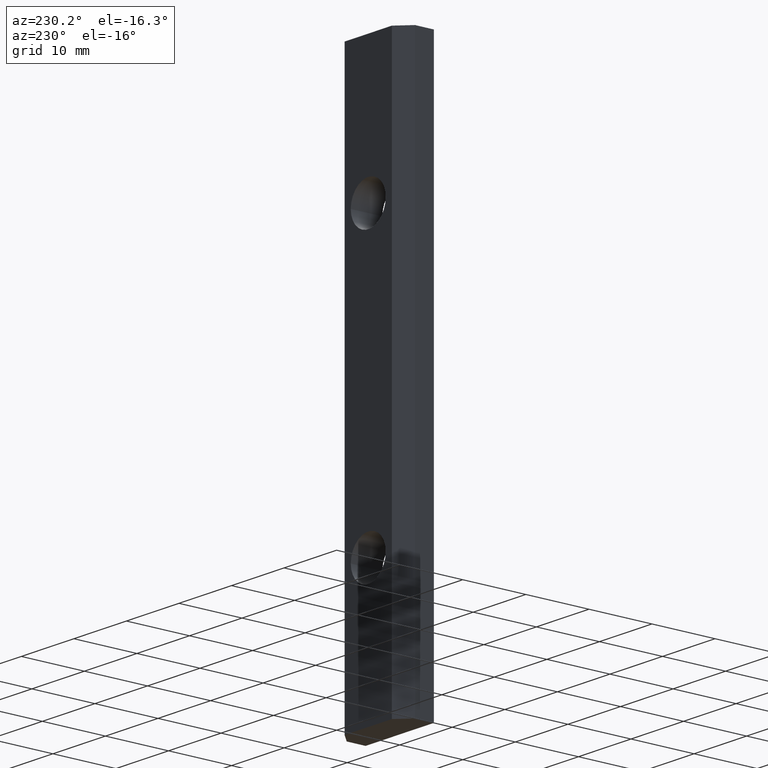
[diagram: clean part render]
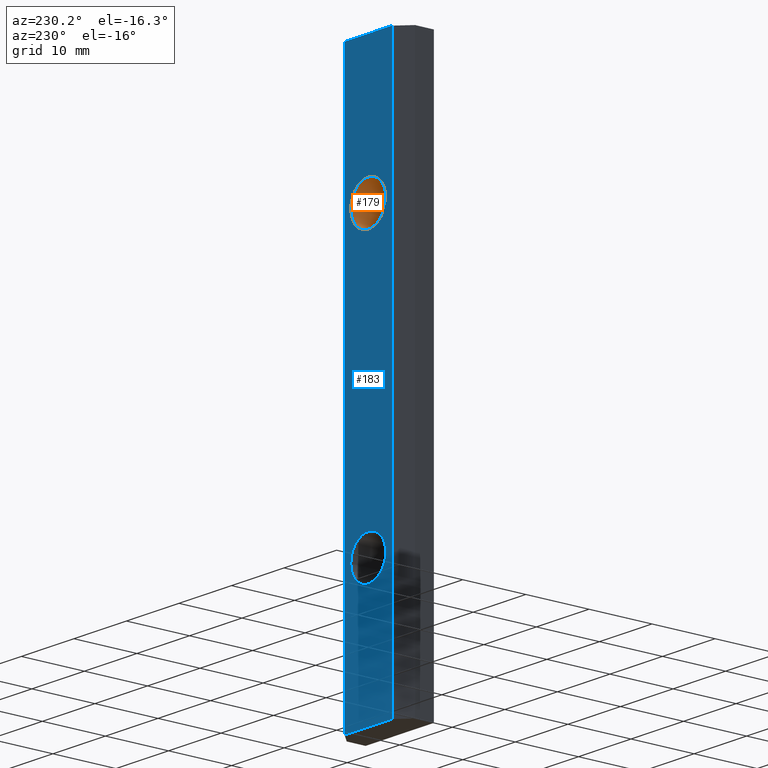
[diagram: same view with the hole feature highlighted: cylindrical wall and planar end face, labeled with their STEP entity ids]
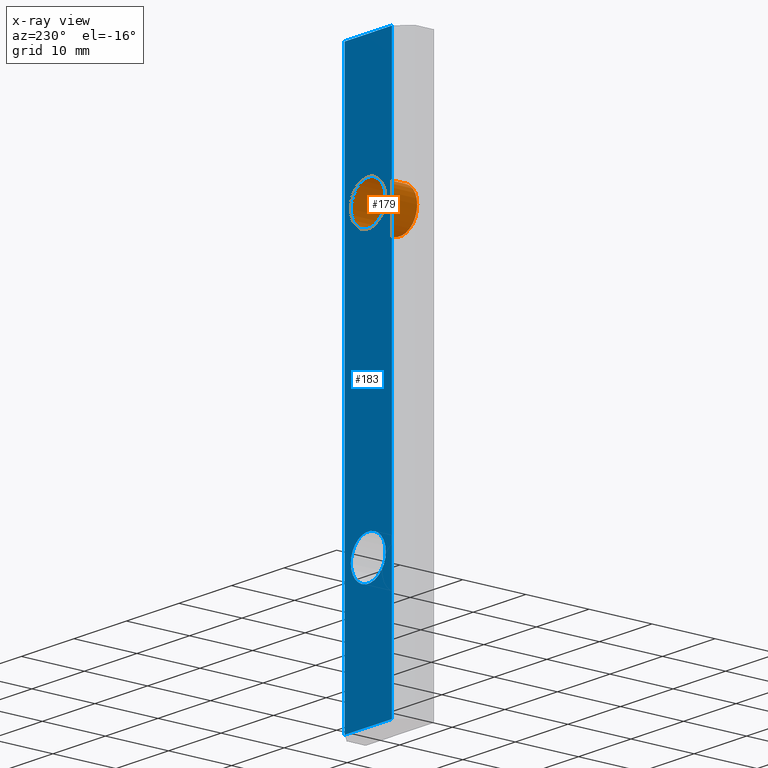
[diagram: x-ray of the same camera — body ghosted, the hole faces saturated]
A machine part, auxiliary view. The highlighted faces form one hole feature of diameter 6.647 mm: the cylindrical wall (entity #179, orange) and its adjacent planar end face (entity #183, blue) — they share a circular edge in the B-rep.
The next image is the same camera in x-ray (body ghosted, the hole faces saturated) — the bore reads through the body.
Wall:
#59=FACE_BOUND('',#76,.T.);
#65=FACE_OUTER_BOUND('',#75,.T.);
#75=EDGE_LOOP('',(#133));
#76=EDGE_LOOP('',(#134));
#91=CIRCLE('',#192,3.3235);
#92=CIRCLE('',#193,3.3235);
#95=VERTEX_POINT('',#255);
#96=VERTEX_POINT('',#257);
#111=EDGE_CURVE('',#95,#95,#91,.T.);
#112=EDGE_CURVE('',#96,#96,#92,.T.);
#133=ORIENTED_EDGE('',*,*,#111,.F.);
#134=ORIENTED_EDGE('',*,*,#112,.F.);
#177=CYLINDRICAL_SURFACE('',#191,3.3235);
#179=ADVANCED_FACE('',(#65,#59),#177,.F.);
#191=AXIS2_PLACEMENT_3D('',#254,#207,#208);
#192=AXIS2_PLACEMENT_3D('',#256,#209,#210);
#193=AXIS2_PLACEMENT_3D('',#258,#211,#212);
#207=DIRECTION('center_axis',(0.,1.,0.));
#208=DIRECTION('ref_axis',(1.,0.,0.));
#209=DIRECTION('center_axis',(0.,1.,0.));
#210=DIRECTION('ref_axis',(1.,0.,0.));
#211=DIRECTION('center_axis',(0.,-1.,0.));
#212=DIRECTION('ref_axis',(1.,0.,0.));
#254=CARTESIAN_POINT('Origin',(0.,-84.095454429505,66.5));
#255=CARTESIAN_POINT('',(-3.3235,0.,66.5));
#256=CARTESIAN_POINT('Origin',(0.,0.,66.5));
#257=CARTESIAN_POINT('',(3.3235,5.,66.5));
#258=CARTESIAN_POINT('Origin',(0.,5.,66.5));
End face:
#21=LINE('',#278,#39);
#22=LINE('',#281,#40);
#23=LINE('',#283,#41);
#24=LINE('',#284,#42);
#39=VECTOR('',#229,88.);
#40=VECTOR('',#232,9.);
#41=VECTOR('',#233,9.);
#42=VECTOR('',#234,88.);
#53=PLANE('',#199);
#61=FACE_BOUND('',#82,.T.);
#62=FACE_BOUND('',#83,.T.);
#69=FACE_OUTER_BOUND('',#81,.T.);
#81=EDGE_LOOP('',(#145,#146,#147,#148));
#82=EDGE_LOOP('',(#149));
#83=EDGE_LOOP('',(#150));
#92=CIRCLE('',#193,3.3235);
#94=CIRCLE('',#196,3.3235);
#96=VERTEX_POINT('',#257);
#98=VERTEX_POINT('',#262);
#103=VERTEX_POINT('',#274);
#104=VERTEX_POINT('',#276);
#105=VERTEX_POINT('',#280);
#106=VERTEX_POINT('',#282);
#112=EDGE_CURVE('',#96,#96,#92,.T.);
#114=EDGE_CURVE('',#98,#98,#94,.T.);
#121=EDGE_CURVE('',#103,#104,#21,.T.);
#122=EDGE_CURVE('',#105,#103,#22,.T.);
#123=EDGE_CURVE('',#106,#104,#23,.T.);
#124=EDGE_CURVE('',#105,#106,#24,.T.);
#145=ORIENTED_EDGE('',*,*,#122,.T.);
#146=ORIENTED_EDGE('',*,*,#121,.T.);
#147=ORIENTED_EDGE('',*,*,#123,.F.);
#148=ORIENTED_EDGE('',*,*,#124,.F.);
#149=ORIENTED_EDGE('',*,*,#112,.T.);
#150=ORIENTED_EDGE('',*,*,#114,.T.);
#183=ADVANCED_FACE('',(#69,#61,#62),#53,.T.);
#193=AXIS2_PLACEMENT_3D('',#258,#211,#212);
#196=AXIS2_PLACEMENT_3D('',#263,#217,#218);
#199=AXIS2_PLACEMENT_3D('',#279,#230,#231);
#211=DIRECTION('center_axis',(0.,-1.,0.));
#212=DIRECTION('ref_axis',(1.,0.,0.));
#217=DIRECTION('center_axis',(0.,-1.,0.));
#218=DIRECTION('ref_axis',(1.,0.,0.));
#229=DIRECTION('',(0.,0.,1.));
#230=DIRECTION('center_axis',(0.,1.,0.));
#231=DIRECTION('ref_axis',(-1.,0.,0.));
#232=DIRECTION('',(-1.,0.,0.));
#233=DIRECTION('',(-1.,0.,0.));
#234=DIRECTION('',(0.,0.,1.));
#257=CARTESIAN_POINT('',(3.3235,5.,66.5));
#258=CARTESIAN_POINT('Origin',(0.,5.,66.5));
#262=CARTESIAN_POINT('',(3.3235,5.,21.5));
#263=CARTESIAN_POINT('Origin',(0.,5.,21.5));
#274=CARTESIAN_POINT('',(-4.5,5.,0.));
#276=CARTESIAN_POINT('',(-4.5,5.,88.));
#278=CARTESIAN_POINT('',(-4.5,5.,0.));
#279=CARTESIAN_POINT('Origin',(4.5,5.,0.));
#280=CARTESIAN_POINT('',(4.5,5.,0.));
#281=CARTESIAN_POINT('',(4.5,5.,0.));
#282=CARTESIAN_POINT('',(4.5,5.,88.));
#283=CARTESIAN_POINT('',(4.5,5.,88.));
#284=CARTESIAN_POINT('',(4.5,5.,0.));